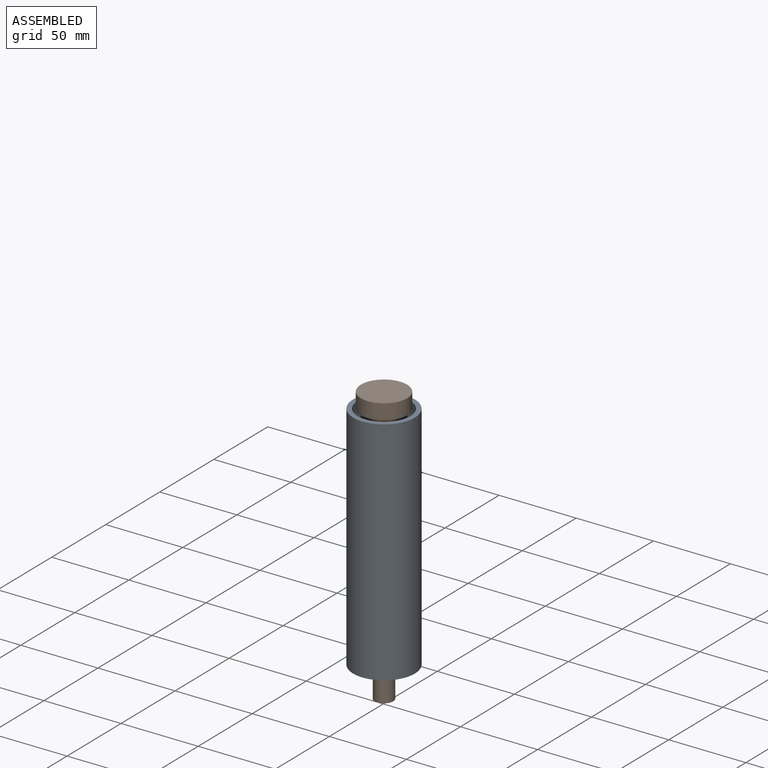
[diagram: assembled view]
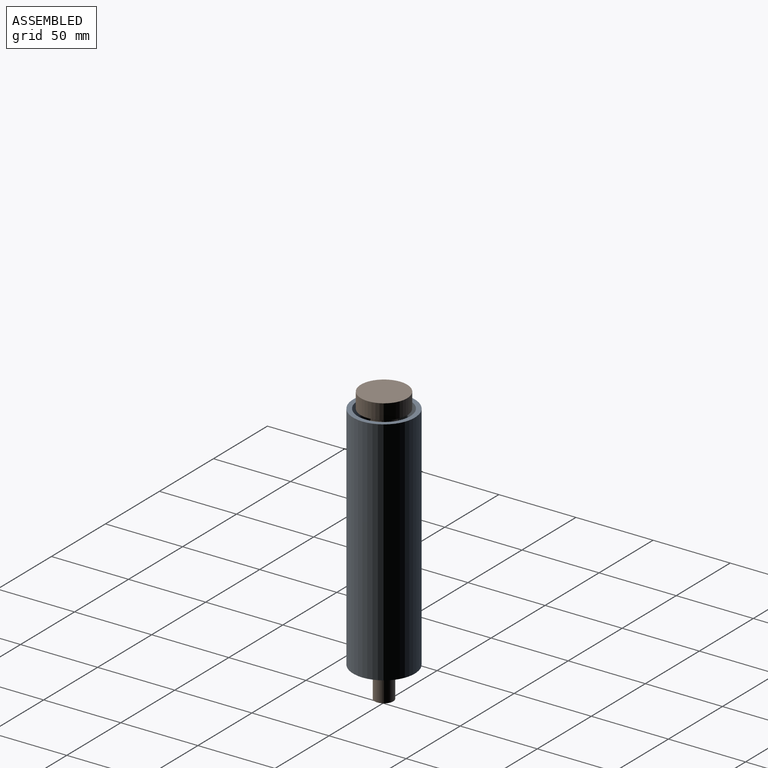
[diagram: assembled view, second angle]
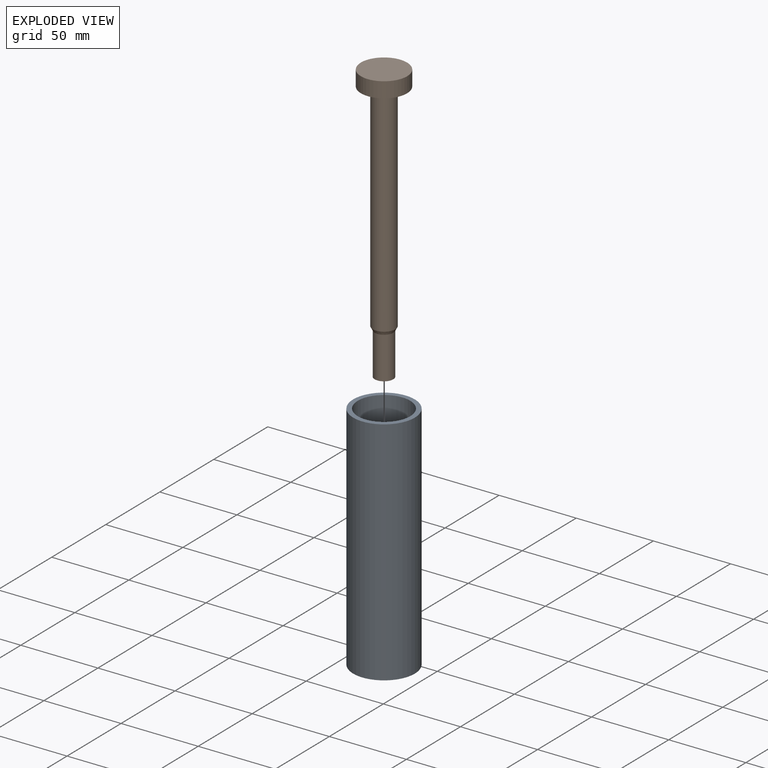
[diagram: exploded view]
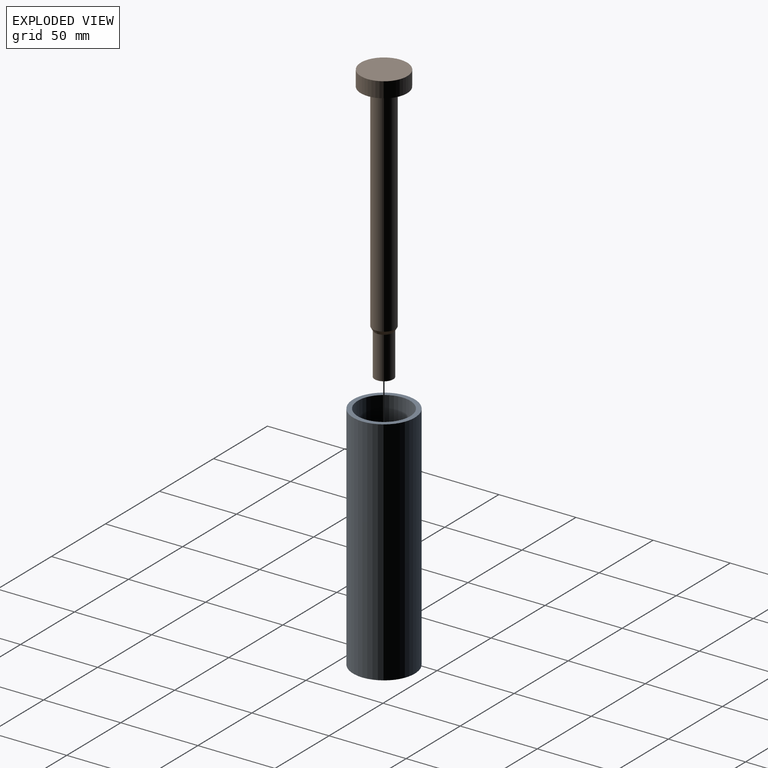
[diagram: exploded view, second angle]
ASSEMBLY  parts=2 mates=2
PART A: 4 faces, bbox 40x40x150 mm
  f0: plane 40x40mm, normal (0,0,1), area 348.7mm2, adj f1,f3
  f1: cylinder r=20mm len=150mm, axis (0,0,1), area 18849.6mm2, adj f0,f2
  f2: plane 40x40mm, normal (0,0,-1), area 348.7mm2, adj f1,f3
  f3: cylinder r=17mm len=150mm, axis (0,0,1), area 16022.1mm2, adj f0,f2
PART B: 9 faces, bbox 30x30x180 mm
  f0: plane 30x30mm, normal (0,0,1), area 706.9mm2, adj f1
  f1: cylinder r=15mm len=30mm, axis (0,0,1), area 942.5mm2, adj f0,f2
  f2: plane 30x30mm, normal (0,0,-1), area 581.2mm2, adj f1,f3
  f3: cylinder r=6.33mm len=12.65mm, axis (0,0,1), area 119.2mm2, adj f2,f4
  f4: plane 14.65x14.65mm, normal (0,0,1), area 42.9mm2, adj f3,f5
  f5: cylinder r=7.33mm len=137.31mm, axis (0,0,1), area 6319.7mm2, adj f4,f6
  f6: cone r=7.33mm half-angle=28.9deg, axis (0,0,1), area 114.6mm2, adj f5,f7
  f7: cylinder r=6mm len=27.29mm, axis (0,0,1), area 1028.9mm2, adj f6,f8
  f8: plane 12x12mm, normal (0,0,-1), area 113.1mm2, adj f7
PLACE A rot(axis=(1,0,0),180deg) t=(0,0.65,-21.86)mm
PLACE B t=(0,0.65,-18.19)mm
MATE cylindrical A.f1 <-> B.f1  axis (0,0,-1) through (0,0.65,-95.49)mm
MATE revolute A.f1 <-> B.f1  axis (0,0,1) through (0,0.65,54.51)mm
